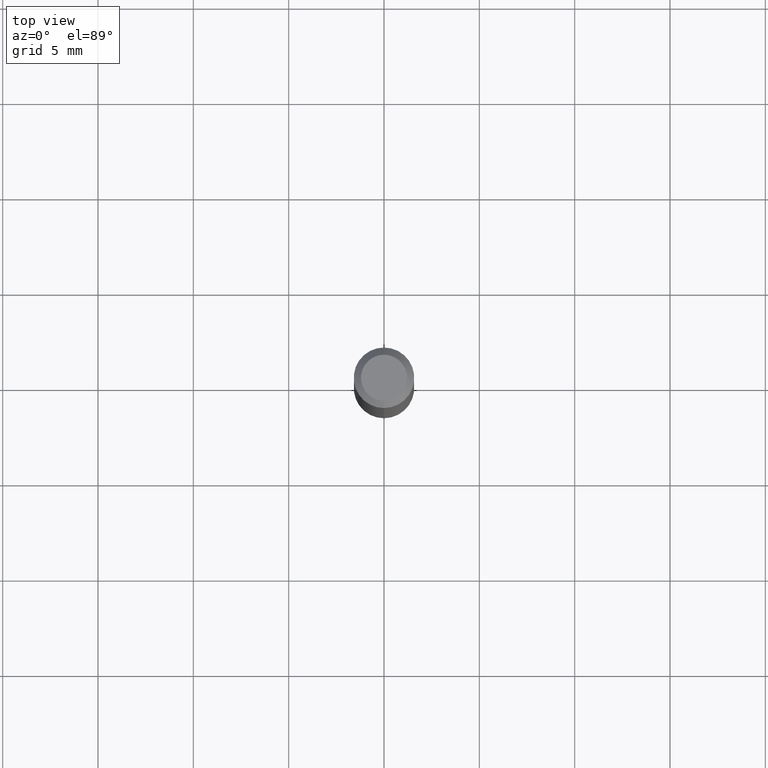
[diagram: clean part render]
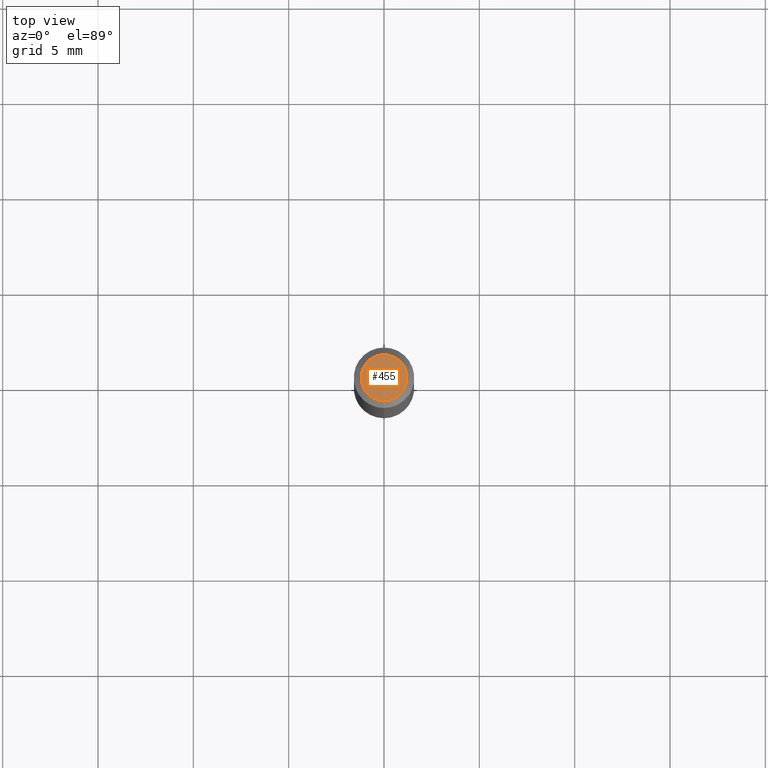
[diagram: same view with one face highlighted and labeled with its STEP entity id]
A machine part, top view. The second image highlights one B-rep face of the part: STEP entity #455.
In plain terms, the highlighted planar face has unit normal (0, -0, -1).
Its self-contained STEP definition (entity closure, byte-faithful):
#4 = CARTESIAN_POINT ( 'NONE',  ( 3.840629472727447874E-16, 0.04749999999999999362, 7.364327909283752044E-17 ) ) ;
#8 = AXIS2_PLACEMENT_3D ( 'NONE', #377, #219, #24 ) ;
#21 = EDGE_CURVE ( 'NONE', #389, #174, #505, .T. ) ;
#23 = ORIENTED_EDGE ( 'NONE', *, *, #395, .T. ) ;
#24 = DIRECTION ( 'NONE',  ( -6.982962677686266711E-15, -1.000000000000000000, 3.491499786051647902E-15 ) ) ;
#29 = EDGE_LOOP ( 'NONE', ( #464, #23 ) ) ;
#39 = AXIS2_PLACEMENT_3D ( 'NONE', #312, #233, #157 ) ;
#157 = DIRECTION ( 'NONE',  ( 6.982962677686265922E-15, 1.000000000000000000, -3.491499786051648691E-15 ) ) ;
#161 = DIRECTION ( 'NONE',  ( -6.982962677686266711E-15, -1.000000000000000000, 3.491499786051647902E-15 ) ) ;
#174 = VERTEX_POINT ( 'NONE', #433 ) ;
#198 = FACE_OUTER_BOUND ( 'NONE', #29, .T. ) ;
#208 = AXIS2_PLACEMENT_3D ( 'NONE', #273, #403, #161 ) ;
#219 = DIRECTION ( 'NONE',  ( -2.445455924568288198E-29, 3.491499786051648296E-15, 1.000000000000000000 ) ) ;
#233 = DIRECTION ( 'NONE',  ( 2.445455924568287917E-29, -3.491499786051648691E-15, -1.000000000000000000 ) ) ;
#273 = CARTESIAN_POINT ( 'NONE',  ( -5.856610629400888588E-45, 8.361776041067224988E-31, 2.394895189302908175E-16 ) ) ;
#312 = CARTESIAN_POINT ( 'NONE',  ( 3.316907271900976096E-16, 0.04749999999999999362, -4.610148037230788213E-17 ) ) ;
#354 = PLANE ( 'NONE',  #39 ) ;
#377 = CARTESIAN_POINT ( 'NONE',  ( -5.856610629400888588E-45, 8.361776041067224988E-31, 2.394895189302908175E-16 ) ) ;
#389 = VERTEX_POINT ( 'NONE', #4 ) ;
#395 = EDGE_CURVE ( 'NONE', #174, #389, #490, .T. ) ;
#403 = DIRECTION ( 'NONE',  ( -2.445455924568288198E-29, 3.491499786051648296E-15, 1.000000000000000000 ) ) ;
#433 = CARTESIAN_POINT ( 'NONE',  ( -3.773273898774340269E-16, -0.04749999999999999362, 4.053357587677440159E-16 ) ) ;
#455 = ADVANCED_FACE ( 'NONE', ( #198 ), #354, .F. ) ;
#464 = ORIENTED_EDGE ( 'NONE', *, *, #21, .T. ) ;
#490 = CIRCLE ( 'NONE', #208, 0.04749999999999999362 ) ;
#505 = CIRCLE ( 'NONE', #8, 0.04749999999999999362 ) ;